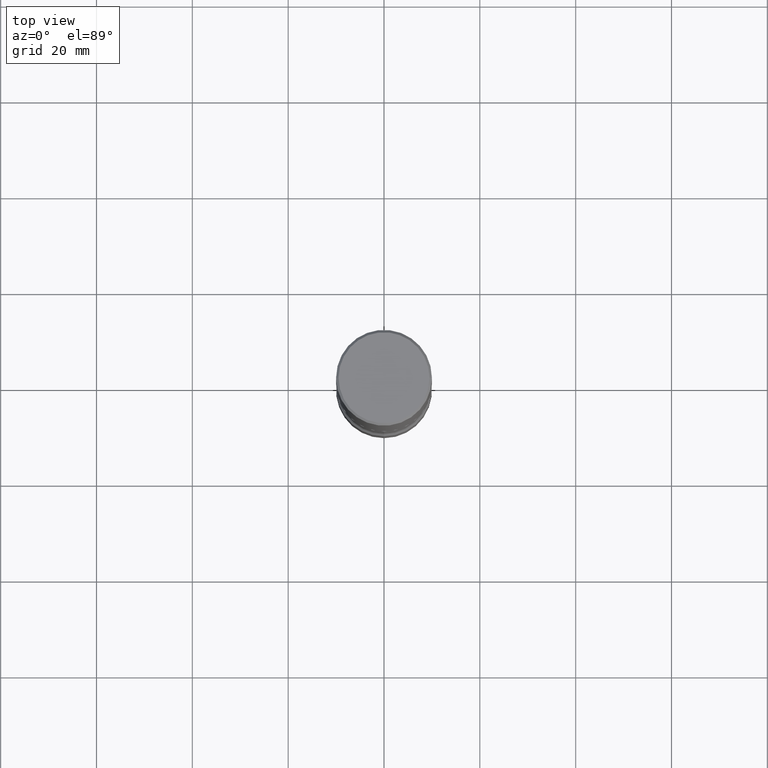
[diagram: clean part render]
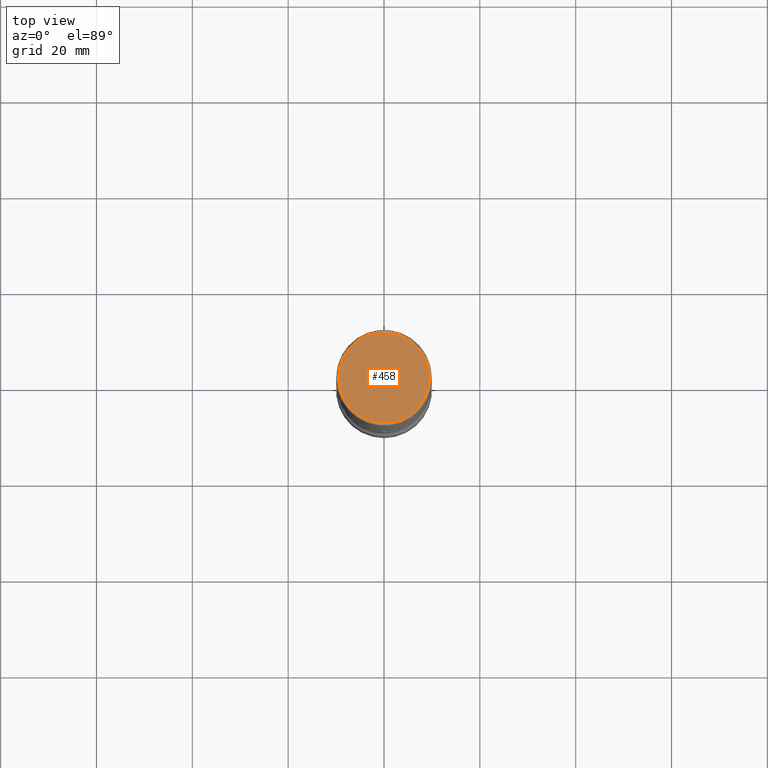
[diagram: same view with one face highlighted and labeled with its STEP entity id]
A machine part, top view. The second image highlights one B-rep face of the part: STEP entity #458.
In plain terms, the highlighted planar face has unit normal (0, -0, -1).
Its self-contained STEP definition (entity closure, byte-faithful):
#11 = PLANE ( 'NONE',  #71 ) ;
#35 = CARTESIAN_POINT ( 'NONE',  ( 0.3736999999999995326, -2.667287895133365992E-15, 8.537024980219274507E-18 ) ) ;
#50 = FACE_OUTER_BOUND ( 'NONE', #433, .T. ) ;
#71 = AXIS2_PLACEMENT_3D ( 'NONE', #196, #202, #328 ) ;
#80 = CARTESIAN_POINT ( 'NONE',  ( -2.087702828670439639E-46, 2.980686340760894400E-32, 8.537024980200822558E-18 ) ) ;
#88 = VERTEX_POINT ( 'NONE', #35 ) ;
#138 = DIRECTION ( 'NONE',  ( 1.000000000000000000, -6.982962677686266711E-15, 4.876212485538981284E-29 ) ) ;
#153 = DIRECTION ( 'NONE',  ( 1.000000000000000000, -6.982962677686266711E-15, 4.876212485538981284E-29 ) ) ;
#154 = ORIENTED_EDGE ( 'NONE', *, *, #347, .T. ) ;
#164 = EDGE_CURVE ( 'NONE', #326, #88, #466, .T. ) ;
#168 = CIRCLE ( 'NONE', #267, 0.3736999999999995326 ) ;
#187 = ORIENTED_EDGE ( 'NONE', *, *, #164, .T. ) ;
#196 = CARTESIAN_POINT ( 'NONE',  ( 2.609533152651354254E-15, 0.3736999999999995326, -1.300498063835581630E-15 ) ) ;
#202 = DIRECTION ( 'NONE',  ( 2.438088387897960049E-29, -3.491481338843145188E-15, -1.000000000000000000 ) ) ;
#215 = CARTESIAN_POINT ( 'NONE',  ( -2.087702828670439639E-46, 2.980686340760894400E-32, 8.537024980200822558E-18 ) ) ;
#267 = AXIS2_PLACEMENT_3D ( 'NONE', #80, #346, #153 ) ;
#292 = DIRECTION ( 'NONE',  ( -2.445468806185136597E-29, 3.491481338843145583E-15, 1.000000000000000000 ) ) ;
#326 = VERTEX_POINT ( 'NONE', #422 ) ;
#328 = DIRECTION ( 'NONE',  ( -1.000000000000000000, 6.982962677686265922E-15, -4.876176775795935793E-29 ) ) ;
#346 = DIRECTION ( 'NONE',  ( -2.445468806185136597E-29, 3.491481338843145583E-15, 1.000000000000000000 ) ) ;
#347 = EDGE_CURVE ( 'NONE', #88, #326, #168, .T. ) ;
#422 = CARTESIAN_POINT ( 'NONE',  ( -0.3736999999999995326, 2.644447966039785903E-15, 8.537024980182450727E-18 ) ) ;
#433 = EDGE_LOOP ( 'NONE', ( #187, #154 ) ) ;
#458 = ADVANCED_FACE ( 'NONE', ( #50 ), #11, .F. ) ;
#466 = CIRCLE ( 'NONE', #505, 0.3736999999999995326 ) ;
#505 = AXIS2_PLACEMENT_3D ( 'NONE', #215, #292, #138 ) ;